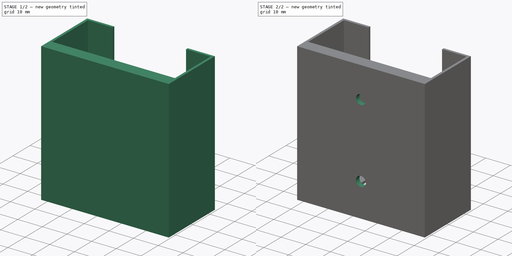
[diagram: build sequence overview — one tinted view per stage of 2, left to right]
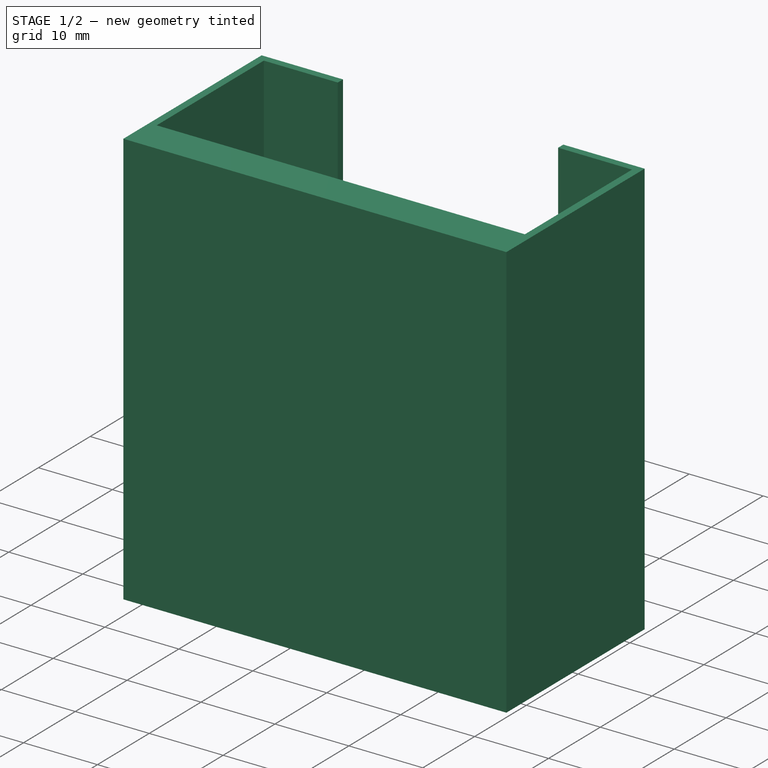
[diagram: stage 1 of 2 — iso view after this stage's code; geometry added in this stage tinted green]
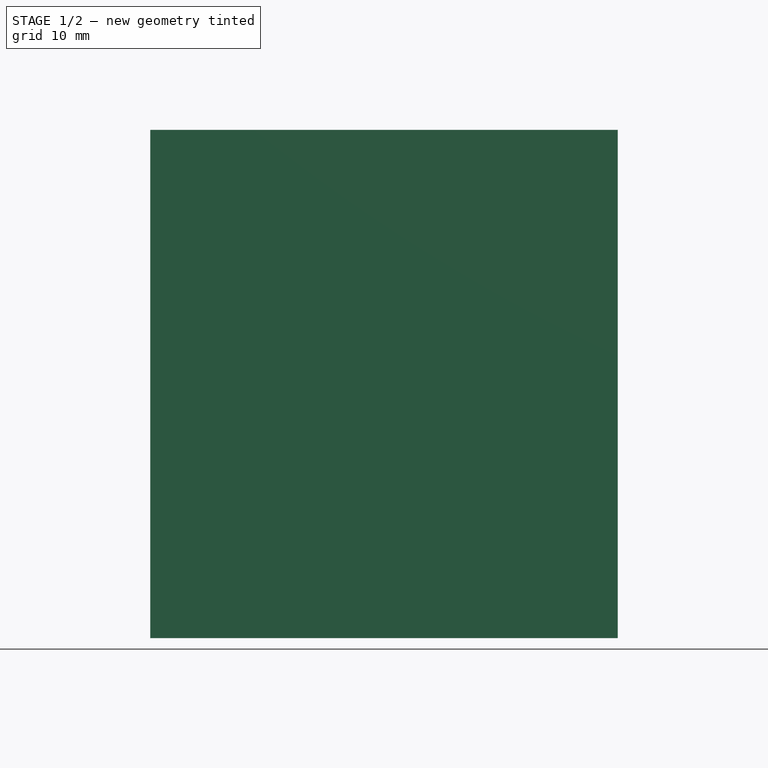
[diagram: stage 1 of 2 — front view after this stage's code; geometry added in this stage tinted green]
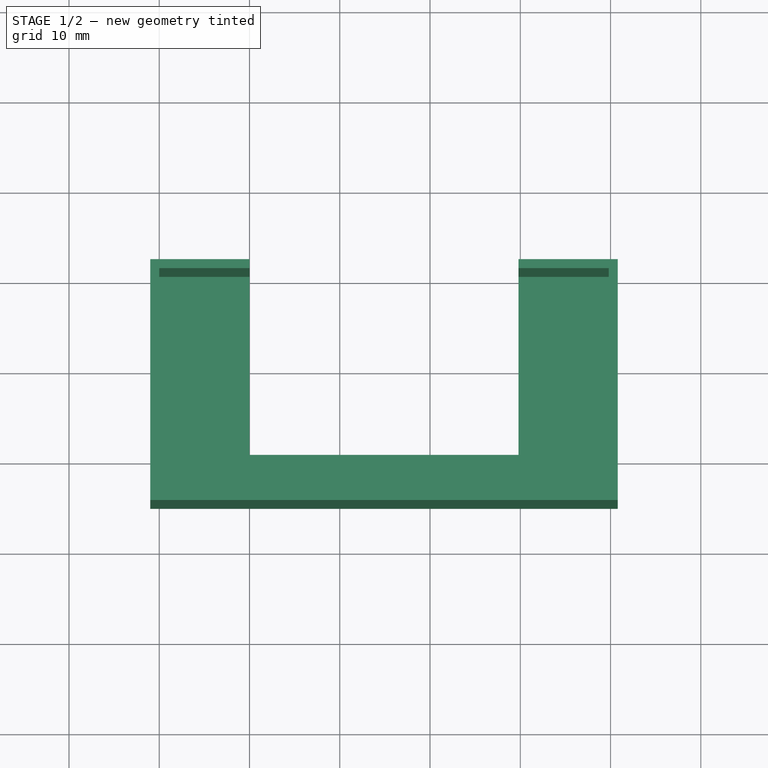
[diagram: stage 1 of 2 — top view after this stage's code; geometry added in this stage tinted green]
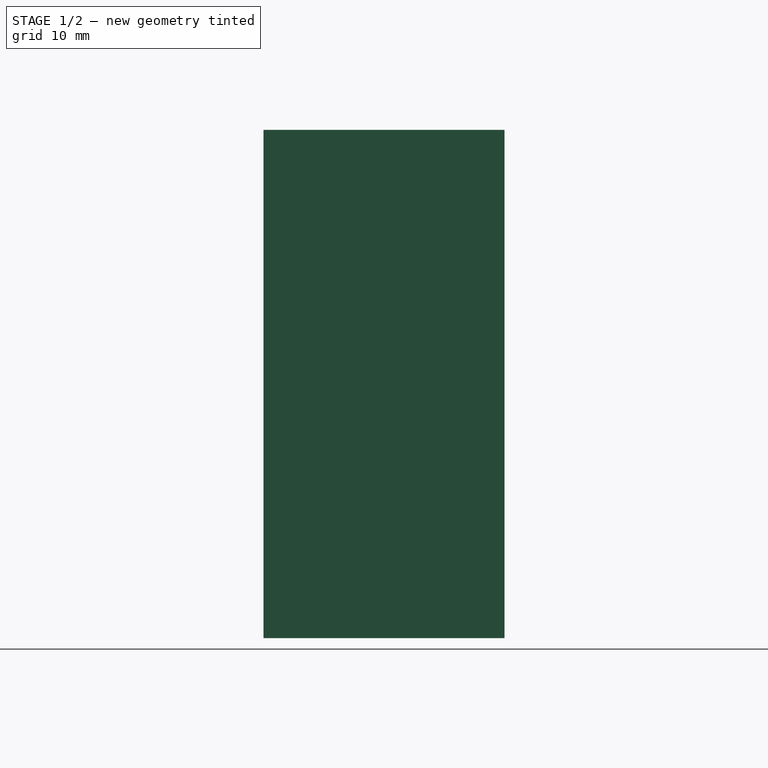
[diagram: stage 1 of 2 — right view after this stage's code; geometry added in this stage tinted green]
FCSTD DOCUMENT  (FreeCAD 0.19R24415 (Git))
Label: pulse_dtmf_converter_mount
License: All rights reserved
LicenseURL: http://en.wikipedia.org/wiki/All_rights_reserved
objects: Sketcher::SketchObject×4, PartDesign::Pad×2, PartDesign::Hole×1, PartDesign::Pocket×1, PartDesign::Body×1
note: 13 computed .brp shape members not serialized (recipe doc carries the construction recipe); baked Part::Feature solids carry a one-line shape summary decoded from their .brp

FEATURE [Sketcher::SketchObject] Sketch
  FullyConstrained = true
  MapMode = 5
  Support = -> [XY_Plane]
  sketch-geometry (12):
    g0: LineSegment StartX=0 StartY=0 StartZ=0 EndX=0 EndY=20.7 EndZ=0
    g1: LineSegment StartX=0 StartY=0 StartZ=0 EndX=49.8 EndY=0 EndZ=0
    g2: LineSegment StartX=49.8 StartY=0 StartZ=0 EndX=49.8 EndY=20.7 EndZ=0
    g3: LineSegment StartX=-1 StartY=-5 StartZ=0 EndX=-1 EndY=21.7 EndZ=0
    g4: LineSegment StartX=-1 StartY=21.7 StartZ=0 EndX=10 EndY=21.7 EndZ=0
    g5: LineSegment StartX=10 StartY=21.7 StartZ=0 EndX=10 EndY=20.7 EndZ=0
    g6: LineSegment StartX=-1 StartY=-5 StartZ=0 EndX=50.8 EndY=-5 EndZ=0
    g7: LineSegment StartX=50.8 StartY=-5 StartZ=0 EndX=50.8 EndY=21.7 EndZ=0
    g8: LineSegment StartX=50.8 StartY=21.7 StartZ=0 EndX=39.8 EndY=21.7 EndZ=0
    g9: LineSegment StartX=39.8 StartY=21.7 StartZ=0 EndX=39.8 EndY=20.7 EndZ=0
    g10: LineSegment StartX=0 StartY=20.7 StartZ=0 EndX=10 EndY=20.7 EndZ=0
    g11: LineSegment StartX=39.8 StartY=20.7 StartZ=0 EndX=49.8 EndY=20.7 EndZ=0
  constraints (35):
    c: Coincident(g0,g-1)
    c: PointOnObject(g0,g-2)
    c: Coincident(g1,g0)
    c: PointOnObject(g1,g-1)
    c: Coincident(g2,g1)
    c: Vertical(g2)
    c: DistanceX(g0,g2) = 49.8
    c: DistanceY(g2,g2) = 20.7
    c: Vertical(g3)
    c: Coincident(g4,g3)
    c: Coincident(g5,g4)
    c: Vertical(g5)
    c: DistanceX(g3,g0) = 1
    c: DistanceY(g0,g3) = 1
    c: Coincident(g6,g3)
    c: Horizontal(g6)
    c: Coincident(g7,g6)
    c: Vertical(g7)
    c: Coincident(g8,g7)
    c: Coincident(g9,g8)
    c: DistanceX(g9,g2) = 10
    c: DistanceX(g0,g5) = 10
    c: DistanceX(g1,g6) = 1
    c: Vertical(g9)
    c: Coincident(g10,g0)
    c: Coincident(g10,g5)
    c: Coincident(g11,g9)
    c: Coincident(g11,g2)
    c: Horizontal(g3,g4)
    c: Horizontal(g4,g8)
    c: Horizontal(g8,g7)
    c: Horizontal(g0,g5)
    c: Horizontal(g5,g9)
    c: Horizontal(g9,g2)
    c: DistanceY(g3,g0) = 5
FEATURE [PartDesign::Pad] Pad
  Direction = (1,1,1)
  Length = 55.3
  Length2 = 100
  Profile = -> Sketch
  Type = 0
FEATURE [Sketcher::SketchObject] Sketch001
  ExternalGeometry = -> [Sketch]
  FullyConstrained = true
  MapMode = 5
  Placement = pos=(0,0,0) rot=(1,0,0;3.14159rad)
  Support = -> [Pad]
  sketch-geometry (8):
    g0: LineSegment StartX=-1 StartY=5 StartZ=0 EndX=50.8 EndY=5 EndZ=0
    g1: LineSegment StartX=-1 StartY=5 StartZ=0 EndX=-1 EndY=-21.7 EndZ=0
    g2: LineSegment StartX=-1 StartY=-21.7 StartZ=0 EndX=10 EndY=-21.7 EndZ=0
    g3: LineSegment StartX=10 StartY=-21.7 StartZ=0 EndX=10 EndY=0 EndZ=0
    g4: LineSegment StartX=50.8 StartY=5 StartZ=0 EndX=50.8 EndY=-21.7 EndZ=0
    g5: LineSegment StartX=50.8 StartY=-21.7 StartZ=0 EndX=39.8 EndY=-21.7 EndZ=0
    g6: LineSegment StartX=39.8 StartY=-21.7 StartZ=0 EndX=39.8 EndY=0 EndZ=0
    g7: LineSegment StartX=10 StartY=0 StartZ=0 EndX=39.8 EndY=0 EndZ=0
  constraints (18):
    c: Coincident(g0,g-3)
    c: Coincident(g0,g-4)
    c: Coincident(g1,g0)
    c: Coincident(g1,g-5)
    c: Coincident(g2,g1)
    c: Coincident(g2,g-5)
    c: Coincident(g3,g2)
    c: PointOnObject(g3,g-1)
    c: Vertical(g3)
    c: Coincident(g4,g0)
    c: Coincident(g4,g-6)
    c: Coincident(g5,g4)
    c: Coincident(g5,g-7)
    c: Coincident(g6,g5)
    c: PointOnObject(g6,g-1)
    c: Vertical(g6)
    c: Coincident(g7,g3)
    c: Coincident(g7,g6)
FEATURE [PartDesign::Pad] Pad001
  BaseFeature = -> Pad
  Direction = (1,1,1)
  Length = 1
  Length2 = 100
  Profile = -> Sketch001
  Type = 0
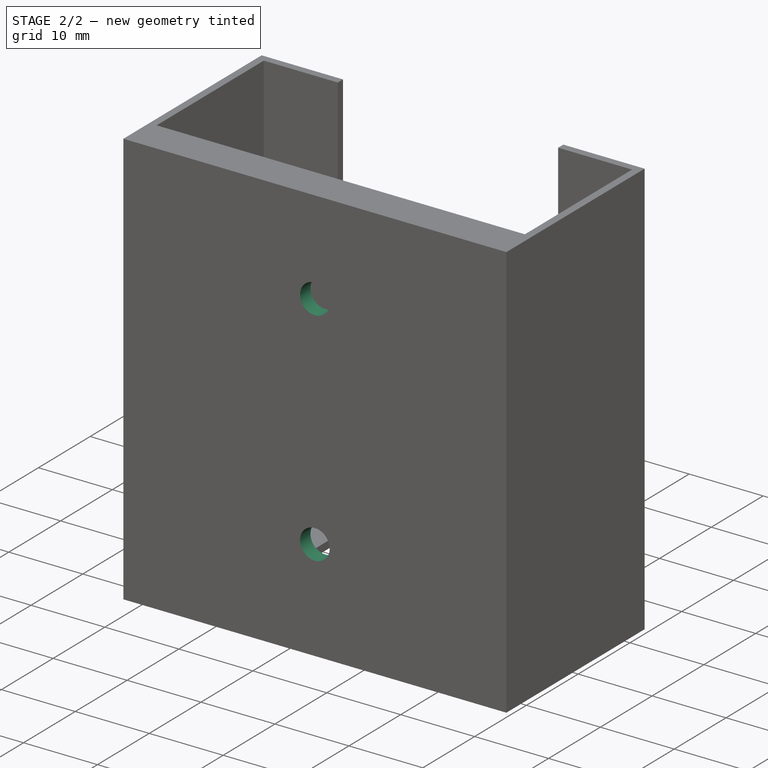
[diagram: stage 2 of 2 — iso view after this stage's code; geometry added in this stage tinted green]
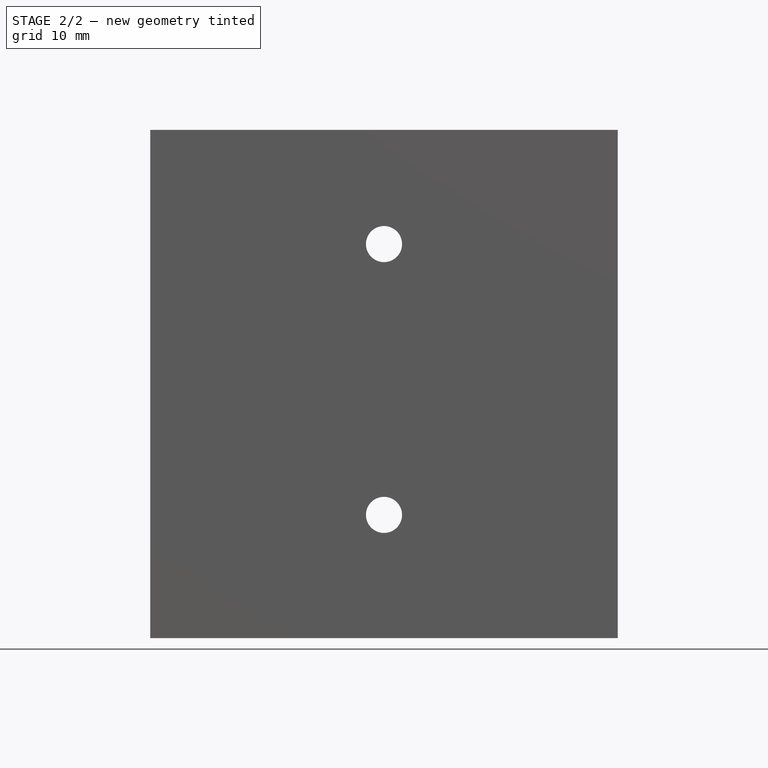
[diagram: stage 2 of 2 — front view after this stage's code; geometry added in this stage tinted green]
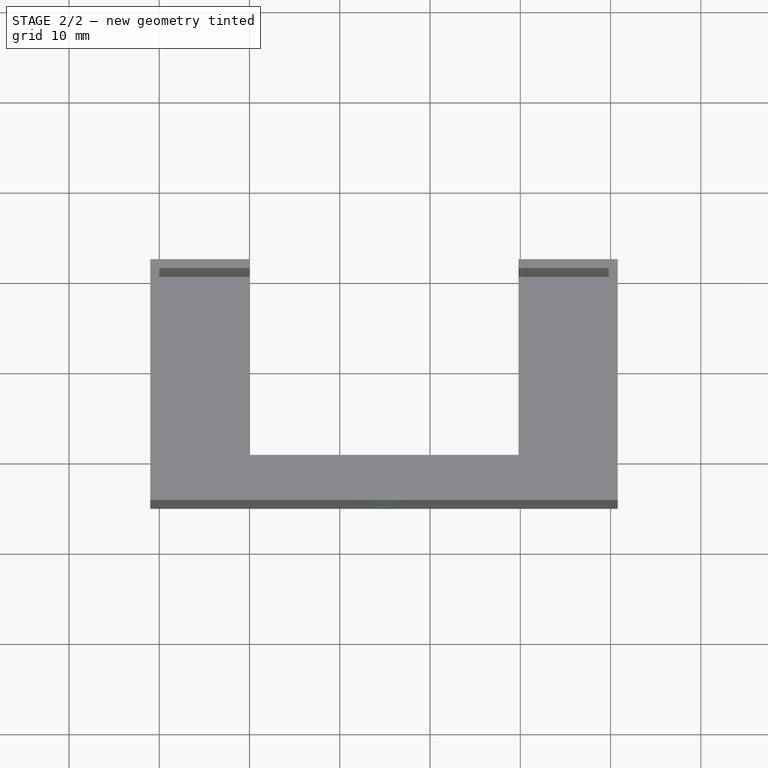
[diagram: stage 2 of 2 — top view after this stage's code; geometry added in this stage tinted green]
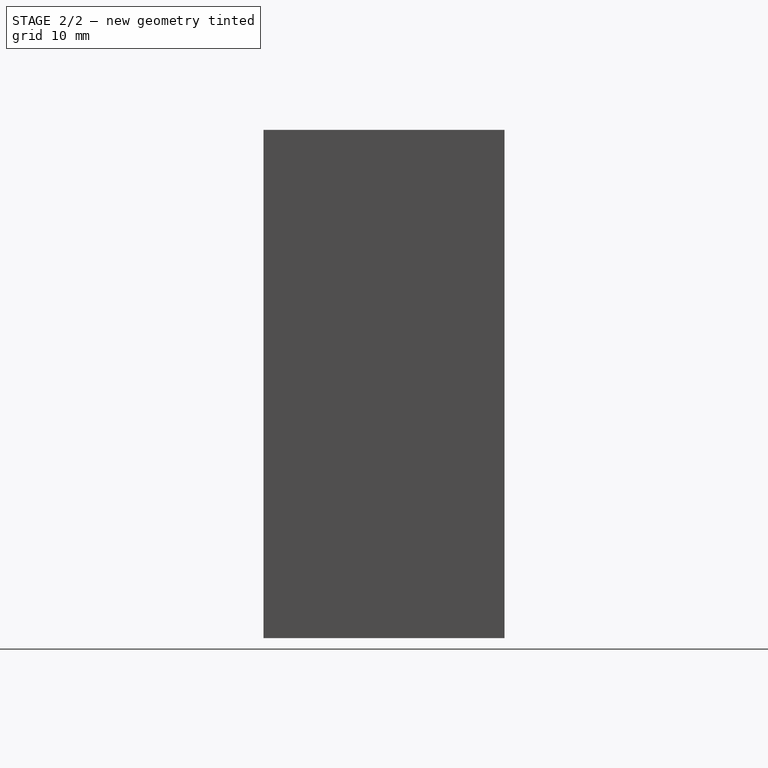
[diagram: stage 2 of 2 — right view after this stage's code; geometry added in this stage tinted green]
FEATURE [Sketcher::SketchObject] Sketch002
  ExternalGeometry = -> [Pad001]
  FullyConstrained = true
  MapMode = 5
  Placement = pos=(0,0,0) rot=(0,0.707107,0.707107;3.14159rad)
  Support = -> [Pad001]
  sketch-geometry (6):
    g0: LineSegment StartX=-39.8 StartY=55.3 StartZ=0 EndX=-10 EndY=7.1e-15 EndZ=0
    g1: LineSegment StartX=-39.8 StartY=4.8e-15 StartZ=0 EndX=-10 EndY=55.3 EndZ=0
    g2: LineSegment StartX=-24.9 StartY=27.65 StartZ=0 EndX=-24.9 EndY=42.65 EndZ=0
    g3: LineSegment StartX=-24.9 StartY=27.65 StartZ=0 EndX=-24.9 EndY=12.65 EndZ=0
    g4: Circle CenterX=-24.9 CenterY=42.65 CenterZ=0 NormalX=0 NormalY=0 NormalZ=1 AngleXU=0 Radius=1.75
    g5: Circle CenterX=-24.9 CenterY=12.65 CenterZ=0 NormalX=0 NormalY=0 NormalZ=1 AngleXU=0 Radius=1.75
  constraints (15):
    c: Coincident(g0,g-4)
    c: Coincident(g0,g-9)
    c: Coincident(g1,g-7)
    c: Coincident(g1,g-9)
    c: PointOnObject(g2,g0)
    c: Vertical(g2)
    c: PointOnObject(g2,g1)
    c: DistanceY(g2,g2) = 15
    c: Coincident(g3,g2)
    c: Vertical(g3)
    c: DistanceY(g3,g2) = 15
    c: Coincident(g4,g2)
    c: Radius(g4) = 1.75
    c: Coincident(g5,g3)
    c: Radius(g5) = 1.75
FEATURE [PartDesign::Hole] Hole
  BaseFeature = -> Pad001
  Depth = 25
  DepthType = 0
  Diameter = 4
  DrillForDepth = false
  DrillPoint = 1
  DrillPointAngle = 118
  HoleCutCountersinkAngle = 90
  HoleCutCustomValues = false
  HoleCutDepth = 0
  HoleCutDiameter = 6.1
  HoleCutType = 0
  ModelActualThread = false
  Profile = -> Sketch002
  Tapered = false
  TaperedAngle = 90
  ThreadAngle = 0
  ThreadClass = 0
  ThreadCutOffInner = 0
  ThreadCutOffOuter = 0
  ThreadDirection = 0
  ThreadFit = 0
  ThreadPitch = 0
  ThreadSize = 0
  ThreadType = 0
  Threaded = false
FEATURE [Sketcher::SketchObject] Sketch003
  ExternalGeometry = -> [Pad001]
  FullyConstrained = true
  MapMode = 5
  Placement = pos=(0,0,0) rot=(0,0.707107,0.707107;3.14159rad)
  Support = -> [Pad001]
  sketch-geometry (6):
    g0: LineSegment StartX=-39.8 StartY=55.3 StartZ=0 EndX=-10 EndY=7.1e-15 EndZ=0
    g1: LineSegment StartX=-39.8 StartY=4.8e-15 StartZ=0 EndX=-10 EndY=55.3 EndZ=0
    g2: LineSegment StartX=-24.9 StartY=27.65 StartZ=0 EndX=-24.9 EndY=42.65 EndZ=0
    g3: LineSegment StartX=-24.9 StartY=27.65 StartZ=0 EndX=-24.9 EndY=12.65 EndZ=0
    g4: Circle CenterX=-24.9 CenterY=42.65 CenterZ=0 NormalX=0 NormalY=0 NormalZ=1 AngleXU=0 Radius=5
    g5: Circle CenterX=-24.9 CenterY=12.65 CenterZ=0 NormalX=0 NormalY=0 NormalZ=1 AngleXU=0 Radius=5
  constraints (15):
    c: Coincident(g0,g-4)
    c: Coincident(g0,g-9)
    c: Coincident(g1,g-7)
    c: Coincident(g1,g-9)
    c: PointOnObject(g2,g0)
    c: Vertical(g2)
    c: PointOnObject(g2,g1)
    c: DistanceY(g2,g2) = 15
    c: Coincident(g3,g2)
    c: Vertical(g3)
    c: DistanceY(g3,g2) = 15
    c: Coincident(g4,g2)
    c: Radius(g4) = 5
    c: Coincident(g5,g3)
    c: Radius(g5) = 5
FEATURE [PartDesign::Pocket] Pocket
  BaseFeature = -> Hole
  Length = 3
  Length2 = 100
  Profile = -> Sketch003
  Type = 0
FEATURE [PartDesign::Body] Body
  Group = -> [Sketch,Pad,Sketch001,Pad001,Sketch002,Hole,Sketch003,Pocket]
  Origin = -> Origin
  Tip = -> Pocket
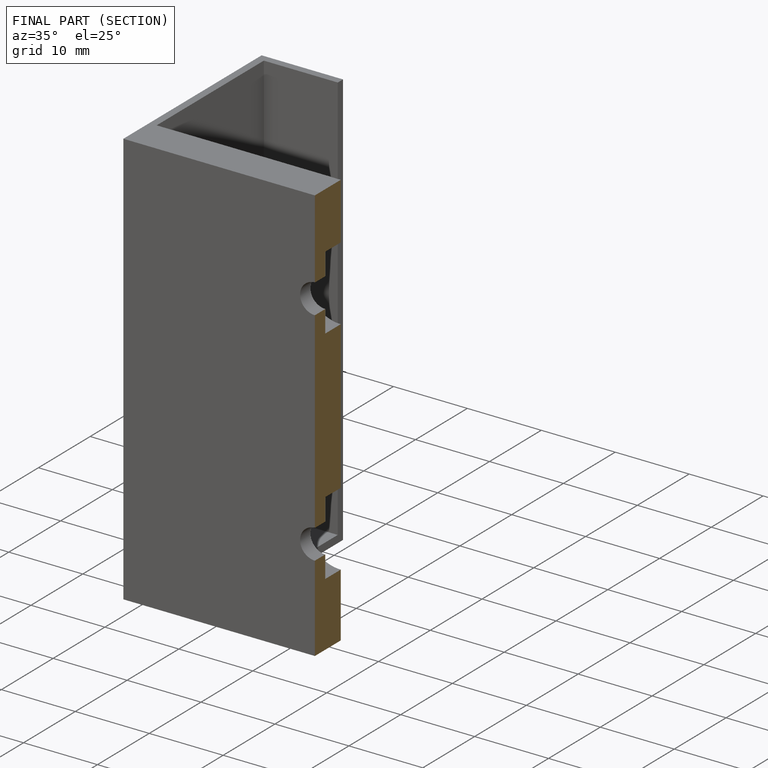
[diagram: finished part — half-section view (interior)]
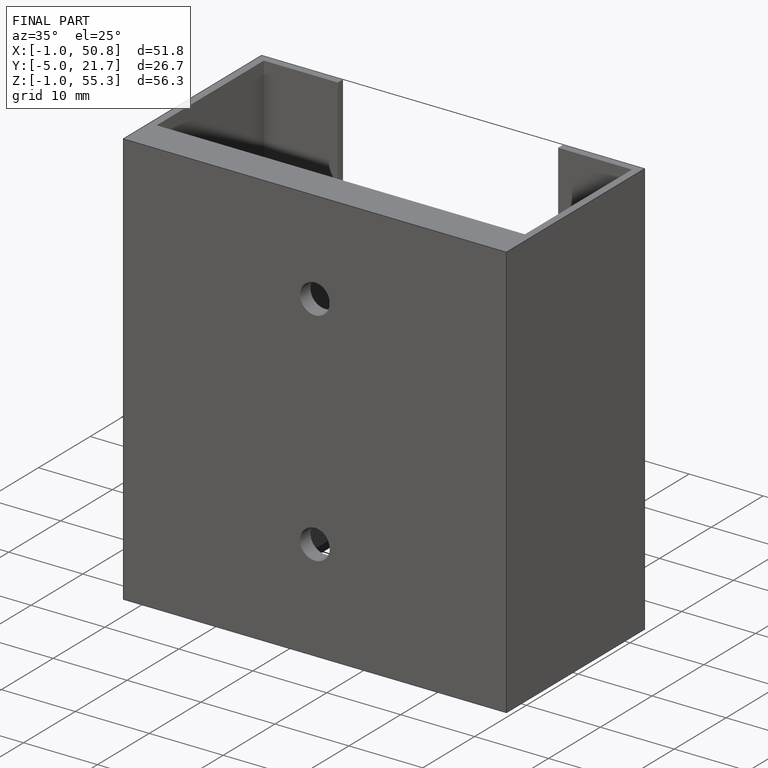
[diagram: finished part — iso view with bounding-box wireframe]
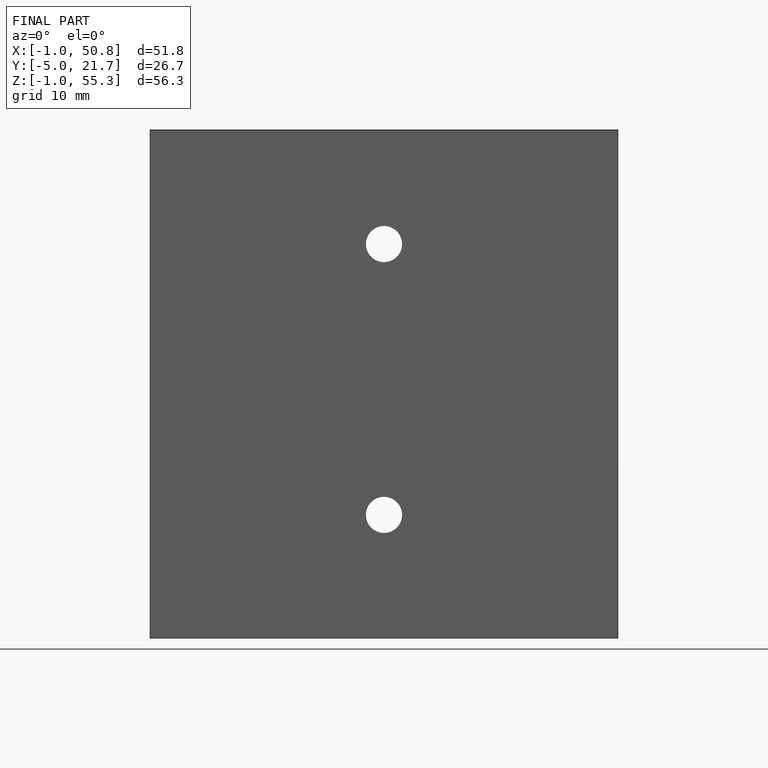
[diagram: finished part — front view with bounding-box wireframe]
